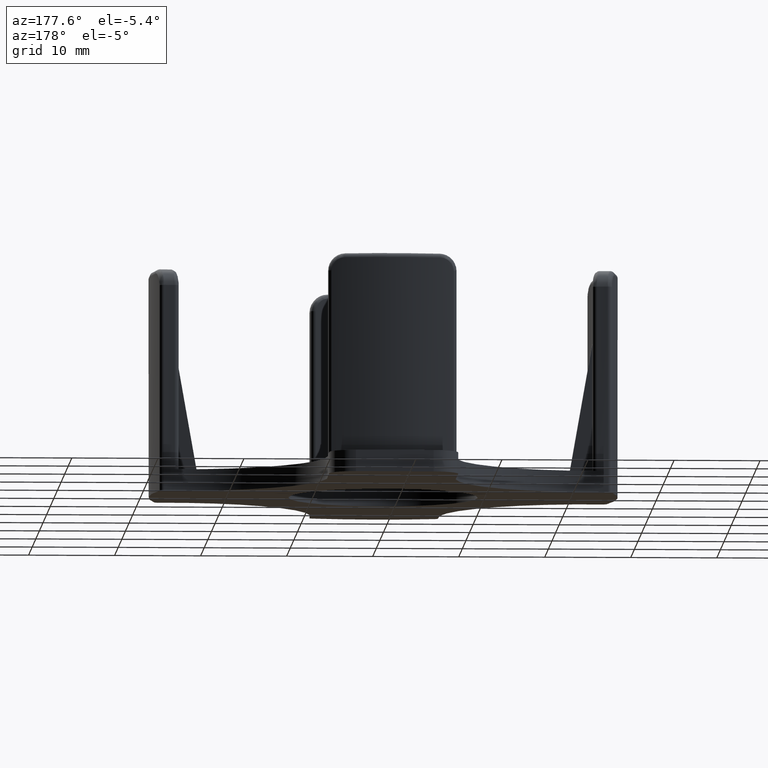
[diagram: clean part render]
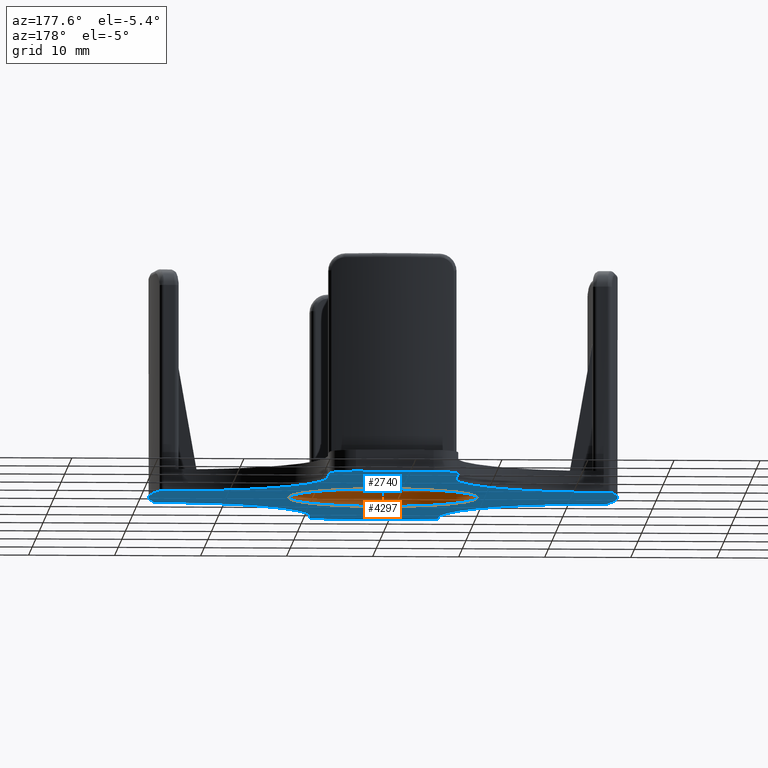
[diagram: same view with the hole feature highlighted: cylindrical wall and planar end face, labeled with their STEP entity ids]
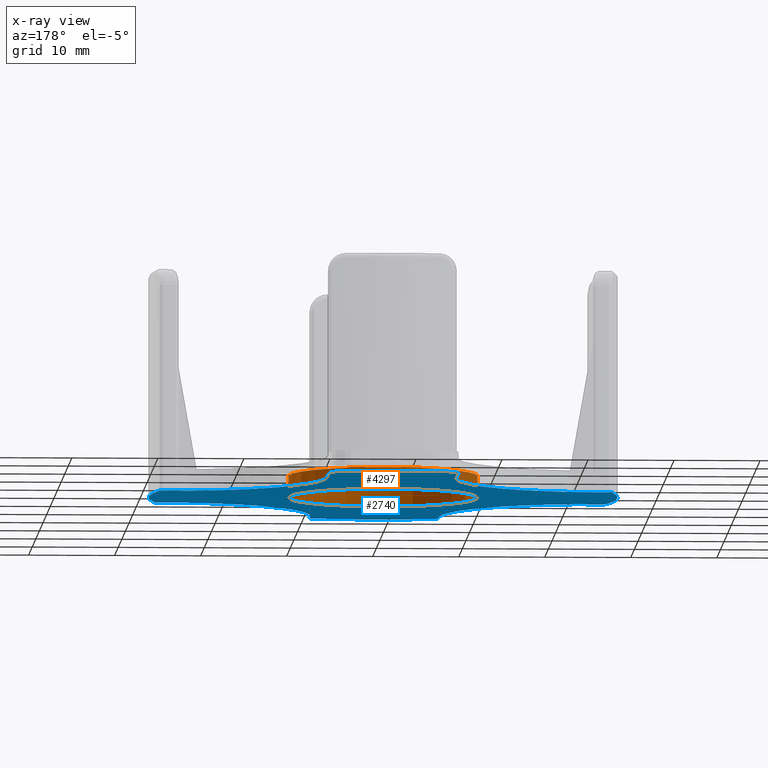
[diagram: x-ray of the same camera — body ghosted, the hole faces saturated]
A machine part, auxiliary view. The highlighted faces form one hole feature of diameter 22 mm: the cylindrical wall (entity #4297, orange) and its adjacent planar end face (entity #2740, blue) — they share a circular edge in the B-rep.
The next image is the same camera in x-ray (body ghosted, the hole faces saturated) — the bore reads through the body.
Wall:
#2729=CARTESIAN_POINT('',(12.276107158651717,-0.776986909884553,0.0));
#2730=VERTEX_POINT('',#2729);
#2731=CARTESIAN_POINT('',(1.276107158651716,-0.776986909884554,0.0));
#2732=DIRECTION('',(0.0,0.0,1.0));
#2733=DIRECTION('',(-1.0,0.0,0.0));
#2734=AXIS2_PLACEMENT_3D('',#2731,#2732,#2733);
#2735=CIRCLE('',#2734,11.0);
#2736=EDGE_CURVE('',#2730,#2730,#2735,.T.);
#4221=CARTESIAN_POINT('',(12.276107158651717,-0.776986909884553,2.500000000000000));
#4222=VERTEX_POINT('',#4221);
#4223=CARTESIAN_POINT('',(1.276107158651716,-0.776986909884554,2.500000000000000));
#4224=DIRECTION('',(0.0,0.0,-1.0));
#4225=DIRECTION('',(-1.0,0.0,0.0));
#4226=AXIS2_PLACEMENT_3D('',#4223,#4224,#4225);
#4227=CIRCLE('',#4226,11.0);
#4228=EDGE_CURVE('',#4222,#4222,#4227,.T.);
#4286=CARTESIAN_POINT('',(1.276107158651716,-0.776986909884554,0.0));
#4287=DIRECTION('',(0.0,0.0,1.0));
#4288=DIRECTION('',(-1.0,0.0,0.0));
#4289=AXIS2_PLACEMENT_3D('',#4286,#4287,#4288);
#4290=CYLINDRICAL_SURFACE('',#4289,11.0);
#4291=ORIENTED_EDGE('',*,*,#4228,.F.);
#4292=EDGE_LOOP('',(#4291));
#4293=FACE_OUTER_BOUND('',#4292,.T.);
#4294=ORIENTED_EDGE('',*,*,#2736,.F.);
#4295=EDGE_LOOP('',(#4294));
#4296=FACE_BOUND('',#4295,.T.);
#4297=ADVANCED_FACE('',(#4293,#4296),#4290,.F.);
End face:
#249=CARTESIAN_POINT('',(8.369430360098384,-27.087579186756969,0.0));
#250=VERTEX_POINT('',#249);
#251=CARTESIAN_POINT('',(8.737622886488127,-26.564171024719350,0.0));
#252=VERTEX_POINT('',#251);
#253=CARTESIAN_POINT('',(8.239277640805785,-26.604816025713440,0.0));
#254=DIRECTION('',(0.0,0.0,1.000000000000000));
#255=DIRECTION('',(0.817903292611810,-0.575355719476882,0.0));
#256=AXIS2_PLACEMENT_3D('',#253,#254,#255);
#257=CIRCLE('',#256,0.500000000000000);
#258=EDGE_CURVE('',#250,#252,#257,.T.);
#403=CARTESIAN_POINT('',(-6.185408569184697,-26.564171024719350,0.0));
#404=VERTEX_POINT('',#403);
#405=CARTESIAN_POINT('',(-5.817216042794956,-27.087579186756962,0.0));
#406=VERTEX_POINT('',#405);
#407=CARTESIAN_POINT('',(-5.687063323502358,-26.604816025713440,0.0));
#408=DIRECTION('',(0.0,0.0,1.0));
#409=DIRECTION('',(-0.817903292611808,-0.575355719476884,0.0));
#410=AXIS2_PLACEMENT_3D('',#407,#408,#409);
#411=CIRCLE('',#410,0.500000000000000);
#412=EDGE_CURVE('',#404,#406,#411,.T.);
#440=CARTESIAN_POINT('',(1.276107158651716,-0.776986909884554,0.0));
#441=DIRECTION('',(0.0,0.0,1.0));
#442=DIRECTION('',(-0.275229357798165,-0.961378593794354,0.0));
#443=AXIS2_PLACEMENT_3D('',#440,#441,#442);
#444=CIRCLE('',#443,27.249999999999996);
#445=EDGE_CURVE('',#406,#250,#444,.T.);
#1898=CARTESIAN_POINT('',(27.063291273486520,-8.238502637720966,0.0));
#1899=VERTEX_POINT('',#1898);
#1900=CARTESIAN_POINT('',(27.586699435524132,-7.870310111331225,0.0));
#1901=VERTEX_POINT('',#1900);
#1902=CARTESIAN_POINT('',(27.103936274480603,-7.740157392038627,0.0));
#1903=DIRECTION('',(0.0,0.0,1.0));
#1904=DIRECTION('',(0.575355719476886,-0.817903292611807,0.0));
#1905=AXIS2_PLACEMENT_3D('',#1902,#1903,#1904);
#1906=CIRCLE('',#1905,0.500000000000000);
#1907=EDGE_CURVE('',#1899,#1901,#1906,.T.);
#2096=CARTESIAN_POINT('',(27.586699435524132,6.316336291562113,0.0));
#2097=VERTEX_POINT('',#2096);
#2098=CARTESIAN_POINT('',(27.063291273486520,6.684528817951858,0.0));
#2099=VERTEX_POINT('',#2098);
#2100=CARTESIAN_POINT('',(27.103936274480603,6.186183572269515,0.0));
#2101=DIRECTION('',(0.0,0.0,1.000000000000000));
#2102=DIRECTION('',(0.575355719476883,0.817903292611809,0.0));
#2103=AXIS2_PLACEMENT_3D('',#2100,#2101,#2102);
#2104=CIRCLE('',#2103,0.500000000000000);
#2105=EDGE_CURVE('',#2097,#2099,#2104,.T.);
#2129=CARTESIAN_POINT('',(25.681361239687661,-25.182240990920498,0.0));
#2130=DIRECTION('',(0.0,0.0,-1.000000000000000));
#2131=DIRECTION('',(-0.105430152932953,-0.994426710649173,0.0));
#2132=AXIS2_PLACEMENT_3D('',#2129,#2130,#2131);
#2133=CIRCLE('',#2132,17.0);
#2134=EDGE_CURVE('',#252,#1899,#2133,.T.);
#2225=CARTESIAN_POINT('',(8.776107158651715,25.420579771011596,0.0));
#2226=VERTEX_POINT('',#2225);
#2227=CARTESIAN_POINT('',(25.681361239687661,23.628267171151389,0.0));
#2228=DIRECTION('',(0.0,0.0,-1.000000000000000));
#2229=DIRECTION('',(0.994426710649173,-0.105430152932953,0.0));
#2230=AXIS2_PLACEMENT_3D('',#2227,#2228,#2229);
#2231=CIRCLE('',#2230,17.0);
#2232=EDGE_CURVE('',#2099,#2226,#2231,.T.);
#2282=CARTESIAN_POINT('',(-24.511076956183082,6.684528817951858,0.0));
#2283=VERTEX_POINT('',#2282);
#2284=CARTESIAN_POINT('',(-25.034485118220694,6.316336291562118,0.0));
#2285=VERTEX_POINT('',#2284);
#2286=CARTESIAN_POINT('',(-24.551721957177168,6.186183572269519,0.0));
#2287=DIRECTION('',(0.0,0.0,1.0));
#2288=DIRECTION('',(-0.575355719476884,0.817903292611808,0.0));
#2289=AXIS2_PLACEMENT_3D('',#2286,#2287,#2288);
#2290=CIRCLE('',#2289,0.500000000000000);
#2291=EDGE_CURVE('',#2283,#2285,#2290,.T.);
#2602=CARTESIAN_POINT('',(-25.034485118220697,-7.870310111331222,0.0));
#2603=VERTEX_POINT('',#2602);
#2604=CARTESIAN_POINT('',(-24.511076956183082,-8.238502637720966,0.0));
#2605=VERTEX_POINT('',#2604);
#2606=CARTESIAN_POINT('',(-24.551721957177168,-7.740157392038622,0.0));
#2607=DIRECTION('',(0.0,0.0,1.000000000000000));
#2608=DIRECTION('',(-0.575355719476882,-0.817903292611810,0.0));
#2609=AXIS2_PLACEMENT_3D('',#2606,#2607,#2608);
#2610=CIRCLE('',#2609,0.500000000000000);
#2611=EDGE_CURVE('',#2603,#2605,#2610,.T.);
#2639=CARTESIAN_POINT('',(1.276107158651716,-0.776986909884554,0.0));
#2640=DIRECTION('',(0.0,0.0,1.0));
#2641=DIRECTION('',(-0.961378593794354,0.275229357798165,0.0));
#2642=AXIS2_PLACEMENT_3D('',#2639,#2640,#2641);
#2643=CIRCLE('',#2642,27.249999999999996);
#2644=EDGE_CURVE('',#2285,#2603,#2643,.T.);
#2649=CARTESIAN_POINT('',(1.276107158651710,28.551696380516933,0.0));
#2650=DIRECTION('',(0.0,0.0,1.0));
#2651=DIRECTION('',(1.0,0.0,0.0));
#2652=AXIS2_PLACEMENT_3D('',#2649,#2650,#2651);
#2653=PLANE('',#2652);
#2654=ORIENTED_EDGE('',*,*,#258,.F.);
#2655=ORIENTED_EDGE('',*,*,#445,.F.);
#2656=ORIENTED_EDGE('',*,*,#412,.F.);
#2657=CARTESIAN_POINT('',(-23.129146922384226,-25.182240990920498,0.0));
#2658=DIRECTION('',(0.0,0.0,-1.000000000000000));
#2659=DIRECTION('',(-0.994426710649173,0.105430152932953,0.0));
#2660=AXIS2_PLACEMENT_3D('',#2657,#2658,#2659);
#2661=CIRCLE('',#2660,17.0);
#2662=EDGE_CURVE('',#2605,#404,#2661,.T.);
#2663=ORIENTED_EDGE('',*,*,#2662,.F.);
#2664=ORIENTED_EDGE('',*,*,#2611,.F.);
#2665=ORIENTED_EDGE('',*,*,#2644,.F.);
#2666=ORIENTED_EDGE('',*,*,#2291,.F.);
#2667=CARTESIAN_POINT('',(-6.223892841348286,25.420579771011596,0.0));
#2668=VERTEX_POINT('',#2667);
#2669=CARTESIAN_POINT('',(-23.129146922384226,23.628267171151389,0.0));
#2670=DIRECTION('',(0.0,0.0,-1.000000000000000));
#2671=DIRECTION('',(0.105430152932953,0.994426710649173,0.0));
#2672=AXIS2_PLACEMENT_3D('',#2669,#2670,#2671);
#2673=CIRCLE('',#2672,17.0);
#2674=EDGE_CURVE('',#2668,#2283,#2673,.T.);
#2675=ORIENTED_EDGE('',*,*,#2674,.F.);
#2676=CARTESIAN_POINT('',(-6.223892841348292,28.723013090115444,0.0));
#2677=VERTEX_POINT('',#2676);
#2678=CARTESIAN_POINT('',(-6.223892841348292,28.723013090115444,0.0));
#2679=DIRECTION('',(0.0,-1.0,0.0));
#2680=VECTOR('',#2679,3.302433319103848);
#2681=LINE('',#2678,#2680);
#2682=EDGE_CURVE('',#2677,#2668,#2681,.T.);
#2683=ORIENTED_EDGE('',*,*,#2682,.F.);
#2684=CARTESIAN_POINT('',(-3.223892841348292,31.723013090115451,0.0));
#2685=VERTEX_POINT('',#2684);
#2686=CARTESIAN_POINT('',(-3.223892841348292,28.723013090115444,0.0));
#2687=DIRECTION('',(0.0,0.0,1.0));
#2688=DIRECTION('',(0.0,1.0,0.0));
#2689=AXIS2_PLACEMENT_3D('',#2686,#2687,#2688);
#2690=CIRCLE('',#2689,3.000000000000000);
#2691=EDGE_CURVE('',#2685,#2677,#2690,.T.);
#2692=ORIENTED_EDGE('',*,*,#2691,.F.);
#2693=CARTESIAN_POINT('',(5.776107158651708,31.723013090115447,0.0));
#2694=VERTEX_POINT('',#2693);
#2695=CARTESIAN_POINT('',(5.776107158651708,31.723013090115447,0.0));
#2696=DIRECTION('',(-1.0,0.0,0.0));
#2697=VECTOR('',#2696,9.0);
#2698=LINE('',#2695,#2697);
#2699=EDGE_CURVE('',#2694,#2685,#2698,.T.);
#2700=ORIENTED_EDGE('',*,*,#2699,.F.);
#2701=CARTESIAN_POINT('',(8.776107158651708,28.723013090115444,0.0));
#2702=VERTEX_POINT('',#2701);
#2703=CARTESIAN_POINT('',(5.776107158651708,28.723013090115444,0.0));
#2704=DIRECTION('',(0.0,0.0,1.0));
#2705=DIRECTION('',(1.0,0.0,0.0));
#2706=AXIS2_PLACEMENT_3D('',#2703,#2704,#2705);
#2707=CIRCLE('',#2706,3.000000000000000);
#2708=EDGE_CURVE('',#2702,#2694,#2707,.T.);
#2709=ORIENTED_EDGE('',*,*,#2708,.F.);
#2710=CARTESIAN_POINT('',(8.776107158651715,25.420579771011596,0.0));
#2711=DIRECTION('',(0.0,1.0,0.0));
#2712=VECTOR('',#2711,3.302433319103848);
#2713=LINE('',#2710,#2712);
#2714=EDGE_CURVE('',#2226,#2702,#2713,.T.);
#2715=ORIENTED_EDGE('',*,*,#2714,.F.);
#2716=ORIENTED_EDGE('',*,*,#2232,.F.);
#2717=ORIENTED_EDGE('',*,*,#2105,.F.);
#2718=CARTESIAN_POINT('',(1.276107158651716,-0.776986909884554,0.0));
#2719=DIRECTION('',(0.0,0.0,1.0));
#2720=DIRECTION('',(0.961378593794354,-0.275229357798165,0.0));
#2721=AXIS2_PLACEMENT_3D('',#2718,#2719,#2720);
#2722=CIRCLE('',#2721,27.250000000000000);
#2723=EDGE_CURVE('',#1901,#2097,#2722,.T.);
#2724=ORIENTED_EDGE('',*,*,#2723,.F.);
#2725=ORIENTED_EDGE('',*,*,#1907,.F.);
#2726=ORIENTED_EDGE('',*,*,#2134,.F.);
#2727=EDGE_LOOP('',(#2654,#2655,#2656,#2663,#2664,#2665,#2666,#2675,#2683,#2692,#2700,#2709,#2715,#2716,#2717,#2724,#2725,#2726));
#2728=FACE_OUTER_BOUND('',#2727,.T.);
#2729=CARTESIAN_POINT('',(12.276107158651717,-0.776986909884553,0.0));
#2730=VERTEX_POINT('',#2729);
#2731=CARTESIAN_POINT('',(1.276107158651716,-0.776986909884554,0.0));
#2732=DIRECTION('',(0.0,0.0,1.0));
#2733=DIRECTION('',(-1.0,0.0,0.0));
#2734=AXIS2_PLACEMENT_3D('',#2731,#2732,#2733);
#2735=CIRCLE('',#2734,11.0);
#2736=EDGE_CURVE('',#2730,#2730,#2735,.T.);
#2737=ORIENTED_EDGE('',*,*,#2736,.T.);
#2738=EDGE_LOOP('',(#2737));
#2739=FACE_BOUND('',#2738,.T.);
#2740=ADVANCED_FACE('',(#2728,#2739),#2653,.F.);